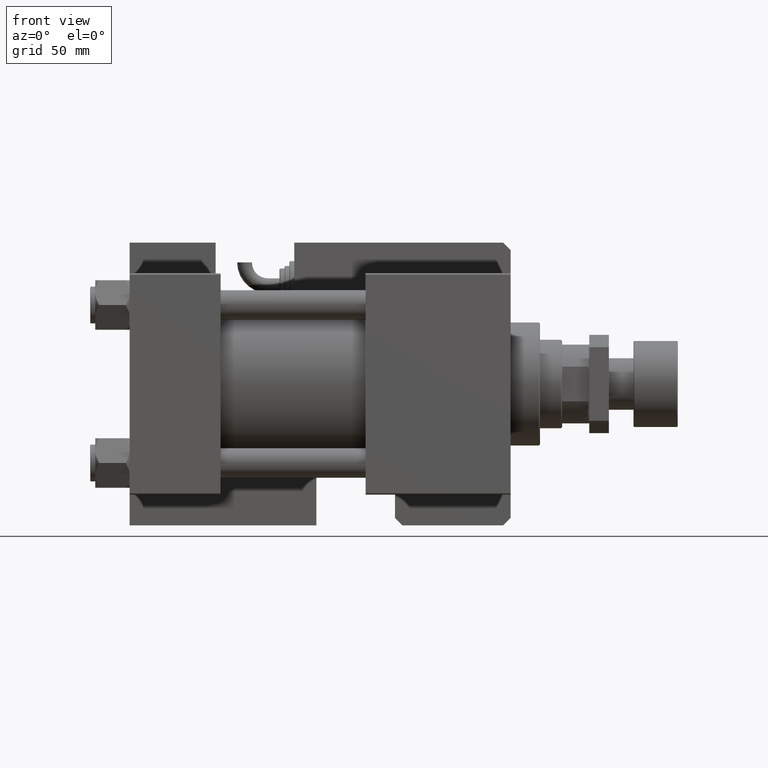
[diagram: clean part render]
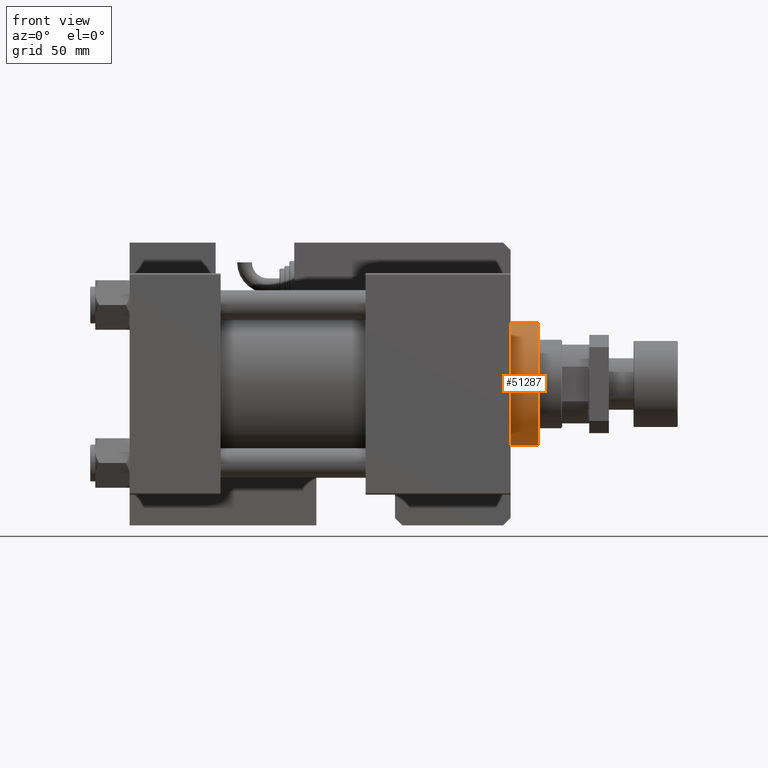
[diagram: same view with one face highlighted and labeled with its STEP entity id]
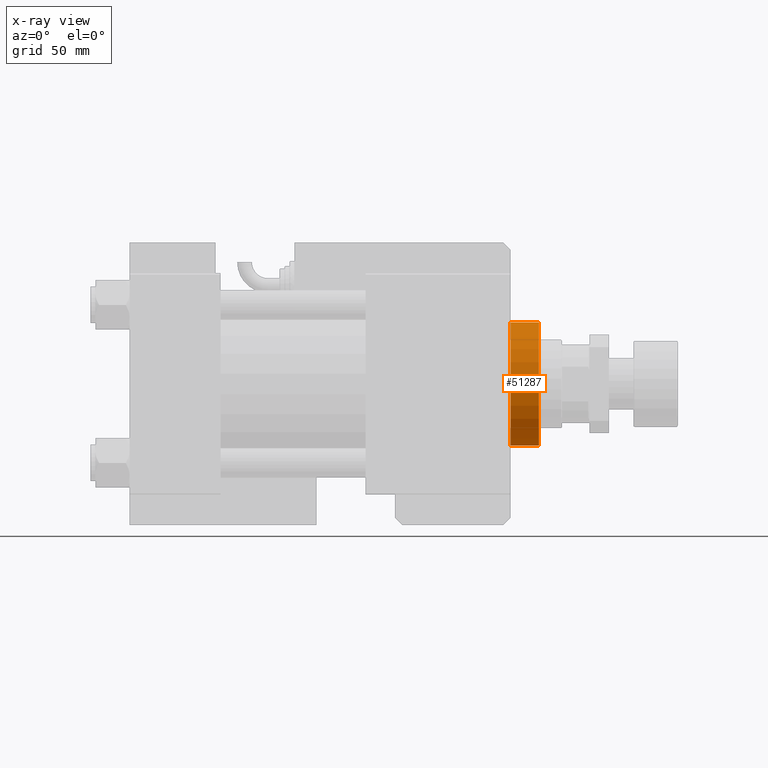
[diagram: x-ray of the same camera — body ghosted, the highlighted face saturated]
A machine part, front view. The second image highlights one B-rep face of the part: STEP entity #51287.
The next image is the same camera in x-ray: the body ghosted, the highlighted face saturated — about 0% of this face is hidden behind the body in this view.
In plain terms, the highlighted cylindrical surface (partial cylindrical patch) has radius 25 mm, axis along (-1, -0, 0).
Its self-contained STEP definition (entity closure, byte-faithful):
#868 = CIRCLE ( 'NONE', #32775, 25.00000000000000000 ) ;
#1601 = CARTESIAN_POINT ( 'NONE',  ( 0.000000000000000000, 0.000000000000000000, 40.70000000000000284 ) ) ;
#2521 = ORIENTED_EDGE ( 'NONE', *, *, #49295, .T. ) ;
#3992 = CARTESIAN_POINT ( 'NONE',  ( 25.00000000000000000, 3.061616997868383043E-15, 40.70000000000000284 ) ) ;
#8655 = VECTOR ( 'NONE', #38785, 1000.000000000000000 ) ;
#11001 = DIRECTION ( 'NONE',  ( -0.000000000000000000, -0.000000000000000000, -1.000000000000000000 ) ) ;
#11074 = VECTOR ( 'NONE', #38131, 1000.000000000000000 ) ;
#12654 = VERTEX_POINT ( 'NONE', #16236 ) ;
#13741 = EDGE_CURVE ( 'NONE', #23443, #47169, #56192, .T. ) ;
#15971 = CARTESIAN_POINT ( 'NONE',  ( 0.000000000000000000, 0.000000000000000000, 28.69999999999999929 ) ) ;
#16236 = CARTESIAN_POINT ( 'NONE',  ( -25.00000000000000000, 0.000000000000000000, 40.20000000000000284 ) ) ;
#18443 = AXIS2_PLACEMENT_3D ( 'NONE', #1601, #11001, #27843 ) ;
#19179 = EDGE_CURVE ( 'NONE', #21572, #12654, #868, .T. ) ;
#19950 = DIRECTION ( 'NONE',  ( 1.000000000000000000, 0.000000000000000000, 0.000000000000000000 ) ) ;
#20459 = LINE ( 'NONE', #55241, #11074 ) ;
#20540 = DIRECTION ( 'NONE',  ( 1.000000000000000000, 0.000000000000000000, 0.000000000000000000 ) ) ;
#21572 = VERTEX_POINT ( 'NONE', #48490 ) ;
#23443 = VERTEX_POINT ( 'NONE', #41785 ) ;
#24237 = ORIENTED_EDGE ( 'NONE', *, *, #34312, .F. ) ;
#24298 = ORIENTED_EDGE ( 'NONE', *, *, #13741, .T. ) ;
#24963 = CARTESIAN_POINT ( 'NONE',  ( 25.00000000000000000, 3.061616997868383043E-15, 28.69999999999999929 ) ) ;
#25937 = DIRECTION ( 'NONE',  ( 0.000000000000000000, 0.000000000000000000, -1.000000000000000000 ) ) ;
#27843 = DIRECTION ( 'NONE',  ( -1.000000000000000000, 0.000000000000000000, 0.000000000000000000 ) ) ;
#28225 = DIRECTION ( 'NONE',  ( 0.000000000000000000, 0.000000000000000000, 1.000000000000000000 ) ) ;
#30009 = ORIENTED_EDGE ( 'NONE', *, *, #19179, .T. ) ;
#32775 = AXIS2_PLACEMENT_3D ( 'NONE', #52164, #25937, #20540 ) ;
#34312 = EDGE_CURVE ( 'NONE', #21572, #47169, #38215, .T. ) ;
#36970 = CYLINDRICAL_SURFACE ( 'NONE', #18443, 25.00000000000000000 ) ;
#38131 = DIRECTION ( 'NONE',  ( -0.000000000000000000, -0.000000000000000000, -1.000000000000000000 ) ) ;
#38215 = LINE ( 'NONE', #3992, #8655 ) ;
#38785 = DIRECTION ( 'NONE',  ( -0.000000000000000000, -0.000000000000000000, -1.000000000000000000 ) ) ;
#38894 = AXIS2_PLACEMENT_3D ( 'NONE', #15971, #28225, #19950 ) ;
#40288 = EDGE_LOOP ( 'NONE', ( #24237, #30009, #2521, #24298 ) ) ;
#41785 = CARTESIAN_POINT ( 'NONE',  ( -25.00000000000000000, 0.000000000000000000, 28.69999999999999929 ) ) ;
#47169 = VERTEX_POINT ( 'NONE', #24963 ) ;
#48490 = CARTESIAN_POINT ( 'NONE',  ( 25.00000000000000000, 3.061616997868383043E-15, 40.20000000000000284 ) ) ;
#49295 = EDGE_CURVE ( 'NONE', #12654, #23443, #20459, .T. ) ;
#50061 = FACE_OUTER_BOUND ( 'NONE', #40288, .T. ) ;
#51287 = ADVANCED_FACE ( 'NONE', ( #50061 ), #36970, .T. ) ;
#52164 = CARTESIAN_POINT ( 'NONE',  ( 0.000000000000000000, 0.000000000000000000, 40.20000000000000284 ) ) ;
#55241 = CARTESIAN_POINT ( 'NONE',  ( -25.00000000000000000, 0.000000000000000000, 40.70000000000000284 ) ) ;
#56192 = CIRCLE ( 'NONE', #38894, 25.00000000000000000 ) ;